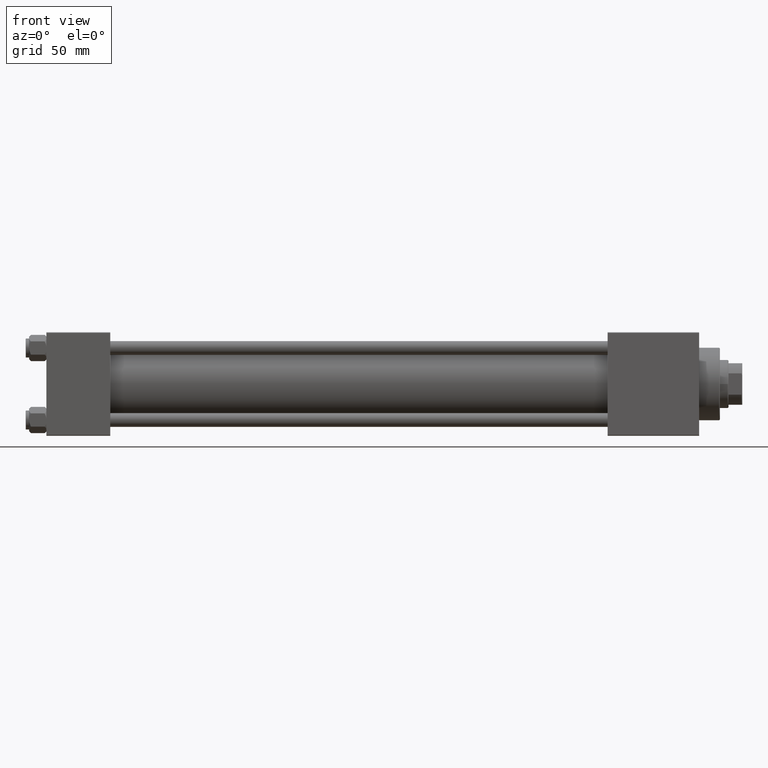
[diagram: clean part render]
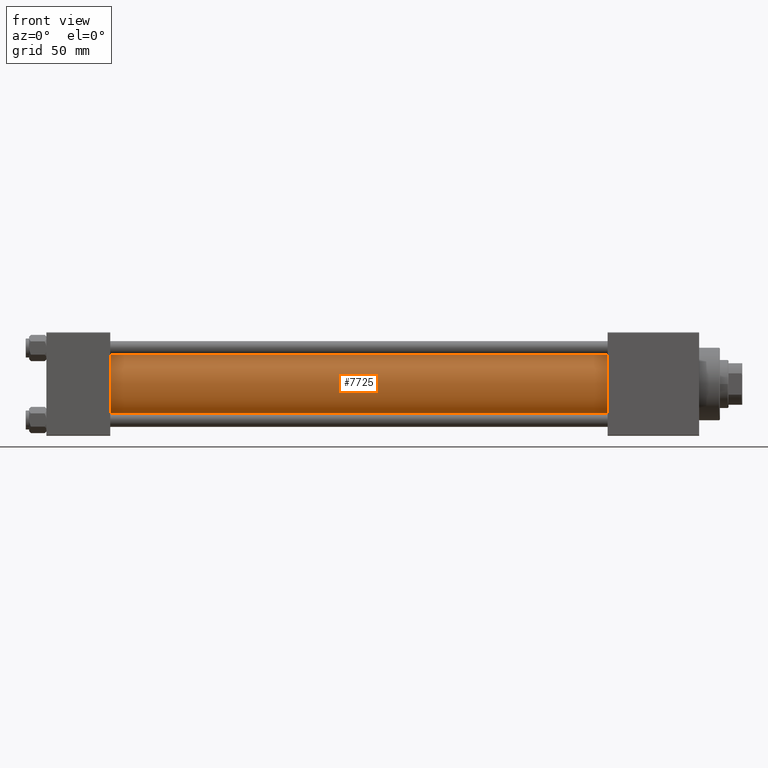
[diagram: same view with one face highlighted and labeled with its STEP entity id]
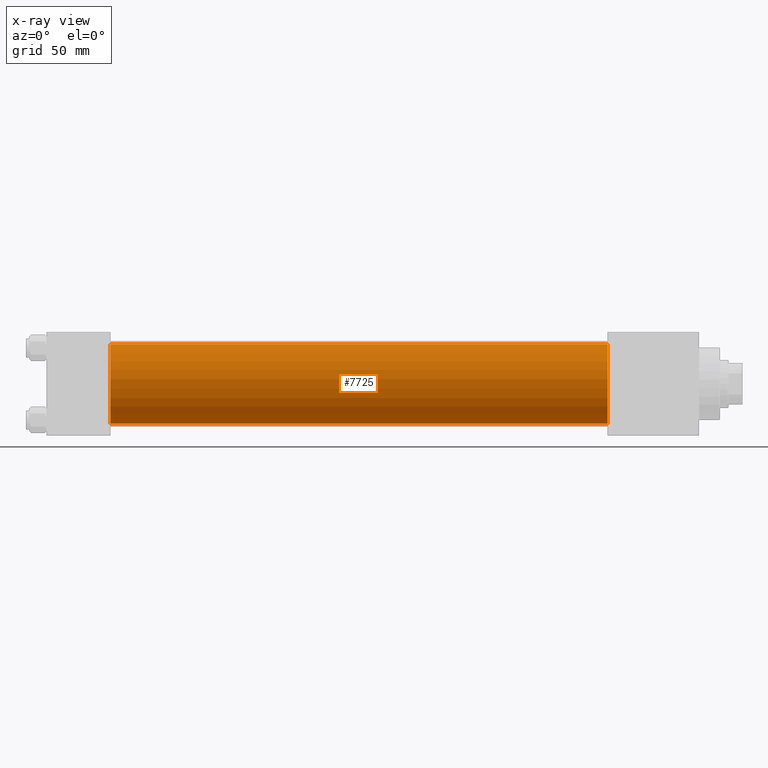
[diagram: x-ray of the same camera — body ghosted, the highlighted face saturated]
A machine part, front view. The second image highlights one B-rep face of the part: STEP entity #7725.
The next image is the same camera in x-ray: the body ghosted, the highlighted face saturated — about 0% of this face is hidden behind the body in this view.
In plain terms, the highlighted cylindrical surface (partial cylindrical patch) has radius 23 mm, axis along (-1, -0, -0).
Its self-contained STEP definition (entity closure, byte-faithful):
#1176 = EDGE_CURVE ( 'NONE', #27056, #42383, #38505, .T. ) ;
#4337 = DIRECTION ( 'NONE',  ( 1.000000000000000000, -0.000000000000000000, 0.000000000000000000 ) ) ;
#5009 = CARTESIAN_POINT ( 'NONE',  ( 36.99999999999997868, -2.602085213965210642E-15, 23.00000000000000000 ) ) ;
#6312 = AXIS2_PLACEMENT_3D ( 'NONE', #19580, #4337, #35289 ) ;
#6364 = CARTESIAN_POINT ( 'NONE',  ( 324.9999999999999432, -2.602085213965210642E-15, 23.00000000000000000 ) ) ;
#7725 = ADVANCED_FACE ( 'NONE', ( #39406 ), #23943, .T. ) ;
#8160 = EDGE_CURVE ( 'NONE', #42383, #25625, #37107, .T. ) ;
#10106 = CARTESIAN_POINT ( 'NONE',  ( 324.9999999999999432, -2.602085213965210642E-15, 0.000000000000000000 ) ) ;
#10420 = DIRECTION ( 'NONE',  ( -1.000000000000000000, -0.000000000000000000, -0.000000000000000000 ) ) ;
#13667 = DIRECTION ( 'NONE',  ( 1.000000000000000000, 0.000000000000000000, 0.000000000000000000 ) ) ;
#15577 = DIRECTION ( 'NONE',  ( -1.000000000000000000, -0.000000000000000000, -0.000000000000000000 ) ) ;
#16916 = CARTESIAN_POINT ( 'NONE',  ( 36.99999999999997868, 2.146024240737016609E-16, -23.00000000000000000 ) ) ;
#17370 = LINE ( 'NONE', #44515, #45312 ) ;
#19580 = CARTESIAN_POINT ( 'NONE',  ( 36.99999999999997868, -2.602085213965210642E-15, 0.000000000000000000 ) ) ;
#20123 = CARTESIAN_POINT ( 'NONE',  ( 324.9999999999999432, -2.602085213965210642E-15, 0.000000000000000000 ) ) ;
#22299 = VECTOR ( 'NONE', #10420, 1000.000000000000000 ) ;
#22375 = ORIENTED_EDGE ( 'NONE', *, *, #1176, .T. ) ;
#23943 = CYLINDRICAL_SURFACE ( 'NONE', #45193, 23.00000000000000000 ) ;
#24372 = VERTEX_POINT ( 'NONE', #42125 ) ;
#25625 = VERTEX_POINT ( 'NONE', #16916 ) ;
#25689 = EDGE_LOOP ( 'NONE', ( #39656, #29264, #22375, #33622 ) ) ;
#27056 = VERTEX_POINT ( 'NONE', #35251 ) ;
#29264 = ORIENTED_EDGE ( 'NONE', *, *, #37486, .F. ) ;
#33018 = AXIS2_PLACEMENT_3D ( 'NONE', #10106, #13667, #37772 ) ;
#33622 = ORIENTED_EDGE ( 'NONE', *, *, #8160, .T. ) ;
#35251 = CARTESIAN_POINT ( 'NONE',  ( 324.9999999999999432, -2.602085213965210642E-15, 23.00000000000000000 ) ) ;
#35289 = DIRECTION ( 'NONE',  ( 0.000000000000000000, 0.000000000000000000, 1.000000000000000000 ) ) ;
#36405 = DIRECTION ( 'NONE',  ( -1.000000000000000000, -0.000000000000000000, -0.000000000000000000 ) ) ;
#37107 = CIRCLE ( 'NONE', #6312, 23.00000000000000000 ) ;
#37486 = EDGE_CURVE ( 'NONE', #27056, #24372, #50040, .T. ) ;
#37772 = DIRECTION ( 'NONE',  ( 0.000000000000000000, 0.000000000000000000, -1.000000000000000000 ) ) ;
#38505 = LINE ( 'NONE', #6364, #22299 ) ;
#39406 = FACE_OUTER_BOUND ( 'NONE', #25689, .T. ) ;
#39656 = ORIENTED_EDGE ( 'NONE', *, *, #41450, .F. ) ;
#41450 = EDGE_CURVE ( 'NONE', #24372, #25625, #17370, .T. ) ;
#42125 = CARTESIAN_POINT ( 'NONE',  ( 324.9999999999999432, 2.146024240737016609E-16, -23.00000000000000000 ) ) ;
#42383 = VERTEX_POINT ( 'NONE', #5009 ) ;
#44515 = CARTESIAN_POINT ( 'NONE',  ( 324.9999999999999432, 2.146024240737016609E-16, -23.00000000000000000 ) ) ;
#45193 = AXIS2_PLACEMENT_3D ( 'NONE', #20123, #15577, #47297 ) ;
#45312 = VECTOR ( 'NONE', #36405, 1000.000000000000000 ) ;
#47297 = DIRECTION ( 'NONE',  ( 0.000000000000000000, 0.000000000000000000, 1.000000000000000000 ) ) ;
#50040 = CIRCLE ( 'NONE', #33018, 23.00000000000000000 ) ;